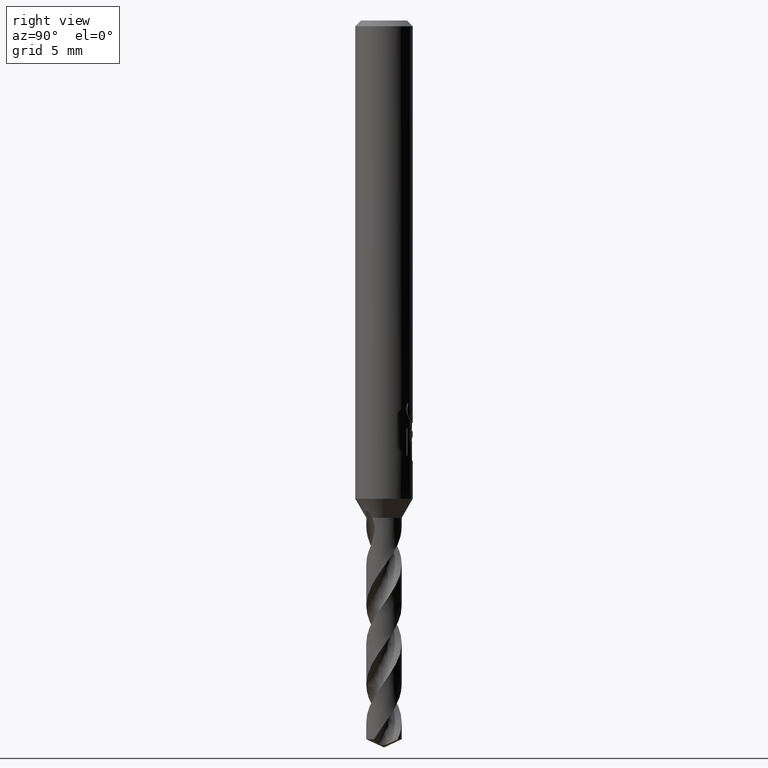
[diagram: clean part render]
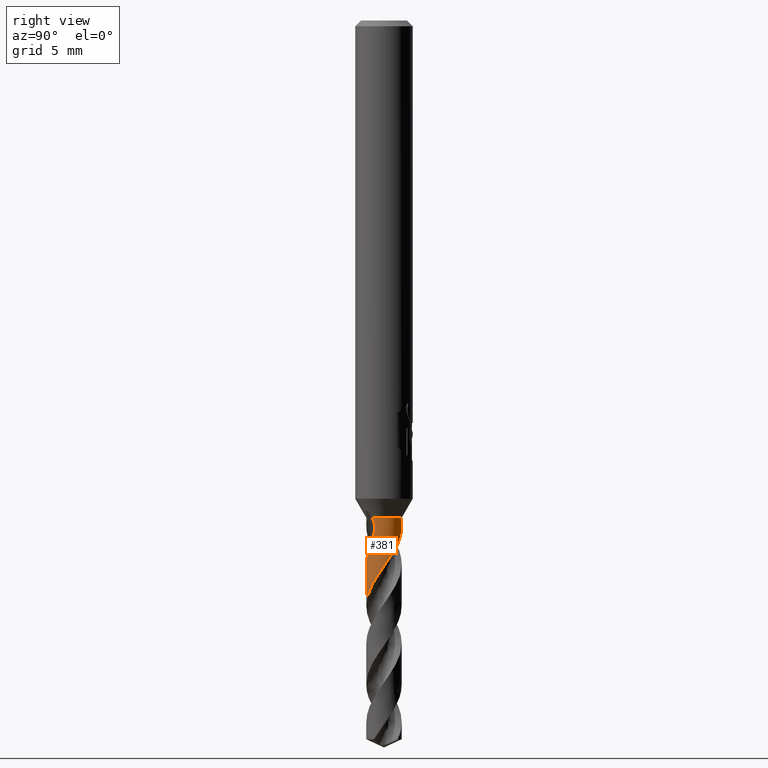
[diagram: same view with one face highlighted and labeled with its STEP entity id]
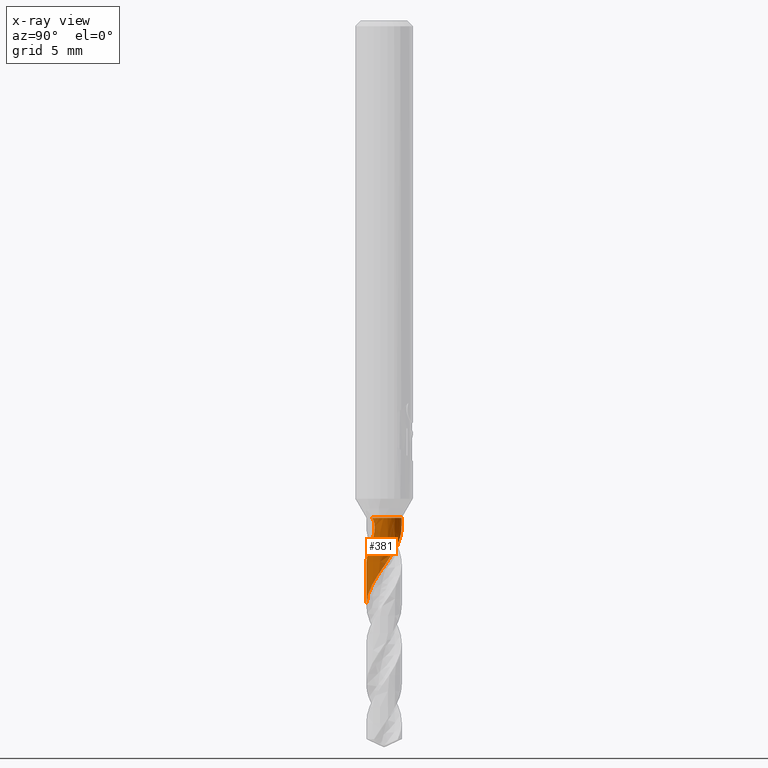
[diagram: x-ray of the same camera — body ghosted, the highlighted face saturated]
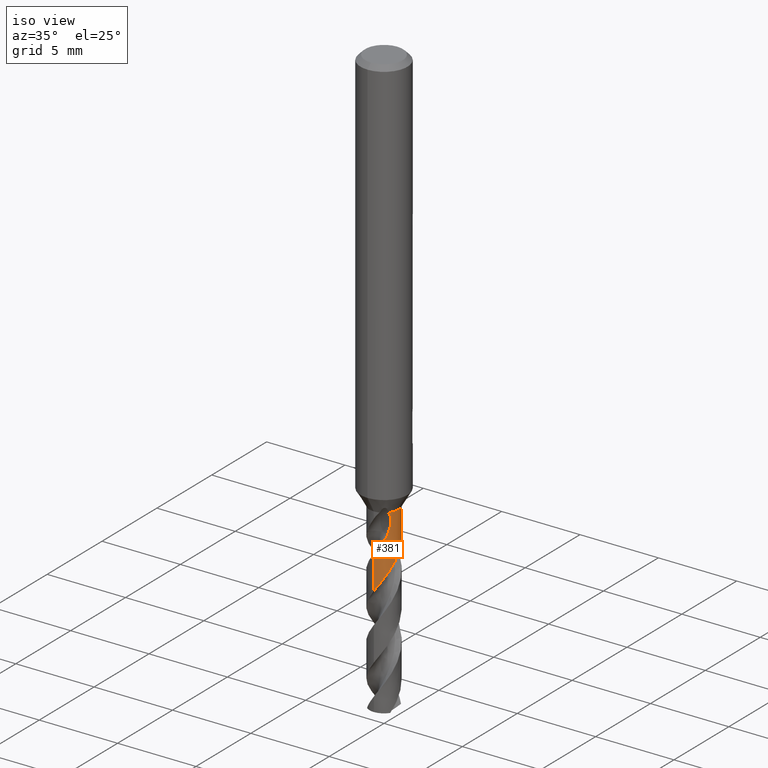
[diagram: same view with one face highlighted and labeled with its STEP entity id]
A machine part, right view. The second image highlights one B-rep face of the part: STEP entity #381.
The next image is the same camera in x-ray: the body ghosted, the highlighted face saturated — about 0% of this face is hidden behind the body in this view.
A second angle (iso view) of the same face is appended — the face is thin or edge-on in the first view.
In plain terms, the highlighted conical surface has half-angle 0 deg.
Its self-contained STEP definition (entity closure, byte-faithful):
#325=VERTEX_POINT('',#858);
#345=VERTEX_POINT('',#879);
#367=VERTEX_POINT('',#902);
#377=EDGE_CURVE('',#705,#393,#913,.T.);
#381=ADVANCED_FACE('',(#917),#918,.T.);
#393=VERTEX_POINT('',#932);
#401=EDGE_CURVE('',#773,#677,#941,.T.);
#427=VERTEX_POINT('',#970);
#479=EDGE_CURVE('',#393,#773,#1028,.T.);
#565=EDGE_CURVE('',#705,#367,#1127,.T.);
#615=EDGE_CURVE('',#345,#367,#1182,.T.);
#657=EDGE_CURVE('',#325,#427,#1228,.T.);
#665=EDGE_CURVE('',#325,#345,#1236,.T.);
#677=VERTEX_POINT('',#1249);
#699=EDGE_CURVE('',#677,#427,#1272,.T.);
#705=VERTEX_POINT('',#1278);
#773=VERTEX_POINT('',#1348);
#858=CARTESIAN_POINT('',(-9.8243710128972E-015,-0.924939684406462,-30.5909562061072));
#879=CARTESIAN_POINT('',(0.589400108508059,0.712790267500029,-27.4036));
#902=CARTESIAN_POINT('',(-2.74337250821414E-013,0.924903633529681,-26.4203508916476));
#913=CIRCLE('',#2601,0.9249);
#917=FACE_OUTER_BOUND('',#2605,.T.);
#918=CONICAL_SURFACE('',#2606,0.92495,8.64403942890488E-006);
#932=CARTESIAN_POINT('',(0.698713419006678,-0.606002943969746,-26.0));
#941=B_SPLINE_CURVE_WITH_KNOTS('',3,(#2845,#2846,#2847,#2848),.UNSPECIFIED.,.F.,.F.,(4,4),(0.0,0.531471170224398),.UNSPECIFIED.);
#970=CARTESIAN_POINT('',(3.18089912591738E-014,-0.924920880447816,-28.4155891454584));
#1028=B_SPLINE_CURVE_WITH_KNOTS('',3,(#3239,#3240,#3241,#3242,#3243,#3244,#3245,#3246),.UNSPECIFIED.,.F.,.F.,(4,2,2,4),(0.0,0.170088529511708,0.409050806964111,0.647055413065579),.UNSPECIFIED.);
#1127=LINE('',#3774,#3775);
#1182=B_SPLINE_CURVE_WITH_KNOTS('',3,(#4232,#4233,#4234,#4235,#4236,#4237,#4238,#4239,#4240,#4241,#4242,#4243,#4244,#4245),.UNSPECIFIED.,.F.,.F.,(4,2,2,2,2,2,4),(0.0,0.453211846334693,0.700665984590304,0.924785888919523,1.18514115200104,1.49787491620889,1.66448612056298),.UNSPECIFIED.);
#1228=LINE('',#4506,#4507);
#1236=B_SPLINE_CURVE_WITH_KNOTS('',3,(#4608,#4609,#4610,#4611,#4612,#4613,#4614,#4615,#4616,#4617,#4618,#4619,#4620,#4621,#4622,#4623,#4624,#4625,#4626,#4627,#4628,#4629,#4630,#4631,#4632,#4633,#4634,#4635,#4636,#4637,#4638,#4639,#4640,#4641,#4642,#4643,#4644,#4645,#4646,#4647,#4648,#4649,#4650,#4651,#4652,#4653,#4654,#4655,#4656,#4657,#4658,#4659,#4660,#4661,#4662,#4663,#4664,#4665,#4666,#4667,#4668,#4669,#4670,#4671,#4672,#4673,#4674,#4675,#4676,#4677,#4678,#4679,#4680,#4681,#4682,#4683,#4684,#4685),.UNSPECIFIED.,.F.,.F.,(4,2,2,2,2,2,2,2,2,2,2,2,2,2,2,2,2,2,2,2,2,2,2,2,2,2,2,2,2,2,2,2,2,2,2,2,2,2,4),(0.0,0.175575967498542,0.360828519478574,1.05434292255817,1.14884404777667,1.83973464778452,2.04112506220054,2.49938006816865,2.93639938622632,3.47251715777154,3.67386599290652,4.13394250316937,4.57152570850511,5.10815653292086,5.3094364090775,5.77050128530134,6.20751829246539,6.74469876623538,6.94654488725072,7.40809844879235,7.84943071925,8.3871396234596,8.58765552124518,9.04980391125373,9.48430552195443,10.0217875624723,10.2183175586294,10.6105977311638,11.5362222291659,11.6507062022349,11.9174526200369,12.0692040576392,12.1504385658655,12.1848521361453,12.2009557850324,12.218424534362,12.2468275413846,12.3092312670282,12.3409704378504),.UNSPECIFIED.);
#1249=CARTESIAN_POINT('',(0.642884402266189,-0.664952704088733,-27.4036));
#1272=B_SPLINE_CURVE_WITH_KNOTS('',3,(#4872,#4873,#4874,#4875,#4876,#4877,#4878,#4879,#4880,#4881,#4882,#4883,#4884,#4885,#4886,#4887,#4888,#4889,#4890,#4891,#4892,#4893,#4894,#4895,#4896,#4897,#4898,#4899,#4900,#4901,#4902,#4903,#4904,#4905,#4906,#4907,#4908,#4909,#4910,#4911,#4912,#4913,#4914,#4915,#4916,#4917,#4918,#4919,#4920,#4921,#4922,#4923,#4924,#4925,#4926,#4927,#4928,#4929,#4930,#4931,#4932,#4933,#4934,#4935,#4936,#4937,#4938,#4939,#4940,#4941,#4942,#4943,#4944,#4945,#4946,#4947,#4948,#4949,#4950,#4951,#4952,#4953,#4954,#4955,#4956,#4957,#4958,#4959,#4960,#4961,#4962,#4963),.UNSPECIFIED.,.F.,.F.,(4,2,2,2,2,2,2,2,2,2,2,2,2,2,2,2,2,2,2,2,2,2,2,2,2,2,2,2,2,2,2,2,2,2,2,2,2,2,2,2,2,2,2,2,2,4),(0.0,0.0472198723982483,0.0574025586129521,0.0735373590386242,0.086846957736826,0.218038330745357,0.261691917204657,0.289044875786619,0.314351081743116,0.347731999434583,0.38465281818207,0.456731164138061,0.577930900790909,0.665369080380014,0.761272562820777,0.868852536537242,1.13142299141288,1.38932056889502,1.94142634502425,2.21493816542565,2.59325546582288,3.11005719064309,3.42902150272813,4.06135873815261,4.12153041123564,4.54978736992714,5.09998388409196,5.47381847869797,6.04042352439801,6.31233732223757,6.73123919419814,7.09755836358704,7.66420864868376,7.93565156013013,8.50201480850518,8.77416913846713,9.1762110815161,9.52846108662162,10.0689661573329,10.5930693893988,10.7136336676005,11.2022319711822,11.36974455639,11.5020738266503,11.956076389131,12.5428964801662),.UNSPECIFIED.);
#1278=CARTESIAN_POINT('',(-1.1330473057431E-016,0.9249,-26.0));
#1348=CARTESIAN_POINT('',(0.752530699830753,-0.537728465253345,-26.8972295746996));
#2601=AXIS2_PLACEMENT_3D('',#5338,#5339,#5340);
#2605=EDGE_LOOP('',(#5342,#5343,#5344,#5345,#5346,#5347,#5348,#5349));
#2606=AXIS2_PLACEMENT_3D('',#5350,#5351,#5352);
#2845=CARTESIAN_POINT('',(0.752530699883373,-0.537728465179705,-26.8972295747286));
#2846=CARTESIAN_POINT('',(0.722715381687317,-0.57945639932318,-27.0668009433799));
#2847=CARTESIAN_POINT('',(0.686781075430327,-0.622510865393656,-27.2373808604398));
#2848=CARTESIAN_POINT('',(0.642884402266189,-0.664952704088733,-27.4036));
#3239=CARTESIAN_POINT('',(0.698713419006677,-0.606002943969746,-26.0));
#3240=CARTESIAN_POINT('',(0.72154832155342,-0.579675191836402,-26.0447199410045));
#3241=CARTESIAN_POINT('',(0.739656282144522,-0.555793818494479,-26.1003877226884));
#3242=CARTESIAN_POINT('',(0.77257279779973,-0.509582102210974,-26.2543227146402));
#3243=CARTESIAN_POINT('',(0.783752835929231,-0.491106068660971,-26.363350023403));
#3244=CARTESIAN_POINT('',(0.786711280595608,-0.486356728276458,-26.6066621325138));
#3245=CARTESIAN_POINT('',(0.779341119472891,-0.500206027456095,-26.7447539637576));
#3246=CARTESIAN_POINT('',(0.752530699830753,-0.537728465253344,-26.8972295746996));
#3774=CARTESIAN_POINT('',(-1.13310853606079E-016,0.92495,-31.7843327081033));
#3775=VECTOR('',#5670,1.0);
#4232=CARTESIAN_POINT('',(0.589400108508058,0.712790267500028,-27.4036));
#4233=CARTESIAN_POINT('',(0.528388895055935,0.763238469147395,-27.2749339919227));
#4234=CARTESIAN_POINT('',(0.458236804988867,0.808085614028365,-27.1549760836982));
#4235=CARTESIAN_POINT('',(0.335910459003294,0.863054299690182,-26.9545840912943));
#4236=CARTESIAN_POINT('',(0.291891993767276,0.878866537231792,-26.8840814618026));
#4237=CARTESIAN_POINT('',(0.206678851691228,0.902497681269574,-26.7476113813932));
#4238=CARTESIAN_POINT('',(0.165864482433325,0.910846395496539,-26.6822794951342));
#4239=CARTESIAN_POINT('',(0.0775209072061811,0.922894916209494,-26.5414783329317));
#4240=CARTESIAN_POINT('',(0.029253355073455,0.925723517893113,-26.4649066637302));
#4241=CARTESIAN_POINT('',(-0.0779352708556708,0.923468366527152,-26.3010989470009));
#4242=CARTESIAN_POINT('',(-0.141486315787706,0.916494675789703,-26.2078934593399));
#4243=CARTESIAN_POINT('',(-0.242111910812451,0.893370600024097,-26.0816993511979));
#4244=CARTESIAN_POINT('',(-0.279965403323301,0.882508292488477,-26.0380984712453));
#4245=CARTESIAN_POINT('',(-0.319347593766621,0.868019080640206,-26.0));
#4506=CARTESIAN_POINT('',(1.13229075787522E-016,-0.92495,-31.7843327081033));
#4507=VECTOR('',#5767,1.0);
#4608=CARTESIAN_POINT('',(0.765392373126077,-0.519422289818627,-37.5686654162066));
#4609=CARTESIAN_POINT('',(0.784380514247591,-0.491441664772919,-37.5208977650976));
#4610=CARTESIAN_POINT('',(0.801760341298683,-0.462529020240874,-37.4731786771621));
#4611=CARTESIAN_POINT('',(0.834075052254815,-0.401494554564502,-37.3747006776217));
#4612=CARTESIAN_POINT('',(0.848779109665413,-0.369376924747079,-37.32383971954));
#4613=CARTESIAN_POINT('',(0.909650441113357,-0.213519169443103,-37.0843601120505));
#4614=CARTESIAN_POINT('',(0.930761006716102,-0.0818331462465088,-36.9022410147496));
#4615=CARTESIAN_POINT('',(0.922677466299594,0.0678252243879808,-36.6879730523665));
#4616=CARTESIAN_POINT('',(0.921189631044293,0.0856921392008494,-36.6622317261582));
#4617=CARTESIAN_POINT('',(0.904467342095256,0.234112716960245,-36.448609682445));
#4618=CARTESIAN_POINT('',(0.862153669552173,0.359927809416848,-36.2671658103587));
#4619=CARTESIAN_POINT('',(0.775439273209969,0.505727394287139,-36.0251070000383));
#4620=CARTESIAN_POINT('',(0.753887361033258,0.537330934171917,-35.9701649795628));
#4621=CARTESIAN_POINT('',(0.676789642705819,0.636529680029753,-35.7910329888305));
#4622=CARTESIAN_POINT('',(0.613667366341773,0.697627858523507,-35.668607518485));
#4623=CARTESIAN_POINT('',(0.475043882724221,0.798064293605595,-35.4262369156211));
#4624=CARTESIAN_POINT('',(0.401238562023327,0.837578458419493,-35.3067460491545));
#4625=CARTESIAN_POINT('',(0.227409099607857,0.902394507541183,-35.0431808027575));
#4626=CARTESIAN_POINT('',(0.126518373206019,0.921927599049064,-34.9009925087592));
#4627=CARTESIAN_POINT('',(-0.0135443842239926,0.925666846836106,-34.7010999657655));
#4628=CARTESIAN_POINT('',(-0.0517352960644762,0.924321039060561,-34.6462148538446));
#4629=CARTESIAN_POINT('',(-0.176987178772398,0.91209304406096,-34.4667734413281));
#4630=CARTESIAN_POINT('',(-0.262599416249737,0.891256566140638,-34.3439838849488));
#4631=CARTESIAN_POINT('',(-0.421754644597107,0.827453400397262,-34.1012057547331));
#4632=CARTESIAN_POINT('',(-0.494563017818746,0.786079291227331,-33.9816806456056));
#4633=CARTESIAN_POINT('',(-0.642109173230414,0.673576255918907,-33.7180831370391));
#4634=CARTESIAN_POINT('',(-0.712431607998869,0.598645622455958,-33.5759001478793));
#4635=CARTESIAN_POINT('',(-0.790253966929606,0.482199260866015,-33.3760813727008));
#4636=CARTESIAN_POINT('',(-0.809457485789412,0.449220706216457,-33.3212680967693));
#4637=CARTESIAN_POINT('',(-0.865943165917025,0.336713958674217,-33.1417541615013));
#4638=CARTESIAN_POINT('',(-0.894002664012377,0.253085426200221,-33.0188265631593));
#4639=CARTESIAN_POINT('',(-0.924857011022342,0.0845115994394349,-32.7761784326368));
#4640=CARTESIAN_POINT('',(-0.92868649245956,0.0010516662091582,-32.6569309109765));
#4641=CARTESIAN_POINT('',(-0.91229888419972,-0.183571282582862,-32.3936029187602));
#4642=CARTESIAN_POINT('',(-0.886458177288607,-0.283031328303463,-32.251416843275));
#4643=CARTESIAN_POINT('',(-0.829479428524753,-0.411054092608912,-32.0515027355334));
#4644=CARTESIAN_POINT('',(-0.811802216592632,-0.44495118138851,-31.9965908967525));
#4645=CARTESIAN_POINT('',(-0.746745122658854,-0.55279584180876,-31.8169867676707));
#4646=CARTESIAN_POINT('',(-0.690983517157953,-0.621138288764363,-31.6940627697022));
#4647=CARTESIAN_POINT('',(-0.564327978826589,-0.737656893513796,-31.4503852564251));
#4648=CARTESIAN_POINT('',(-0.495114876271323,-0.785762831385403,-31.3300880839133));
#4649=CARTESIAN_POINT('',(-0.329356363733435,-0.870339594705546,-31.0657427521712));
#4650=CARTESIAN_POINT('',(-0.231380861533836,-0.901306147578169,-30.9235759782654));
#4651=CARTESIAN_POINT('',(-0.092965290213835,-0.921040290421541,-30.7240762827117));
#4652=CARTESIAN_POINT('',(-0.0551462363420279,-0.924078245976952,-30.6695847699962));
#4653=CARTESIAN_POINT('',(0.070546454734379,-0.926402604481755,-30.4903238564789));
#4654=CARTESIAN_POINT('',(0.158125360750212,-0.915561212184012,-30.36732869851));
#4655=CARTESIAN_POINT('',(0.322883147617352,-0.870689100030256,-30.1255065053255));
#4656=CARTESIAN_POINT('',(0.39924039905627,-0.838404283386813,-30.0071551437473));
#4657=CARTESIAN_POINT('',(0.558204430619525,-0.744532834237145,-29.7449189355787));
#4658=CARTESIAN_POINT('',(0.636770523360065,-0.678502398866895,-29.6029748500079));
#4659=CARTESIAN_POINT('',(0.727053779955913,-0.572948792529293,-29.4047685818148));
#4660=CARTESIAN_POINT('',(0.749440542849017,-0.543336581233159,-29.3513946775145));
#4661=CARTESIAN_POINT('',(0.811143642118129,-0.450603825405646,-29.1923342754664));
#4662=CARTESIAN_POINT('',(0.844796495363684,-0.383914183574037,-29.0875521904075));
#4663=CARTESIAN_POINT('',(0.929904437573281,-0.147782049829723,-28.7329990234062));
#4664=CARTESIAN_POINT('',(0.940798775969694,0.0322440173726759,-28.4829320863451));
#4665=CARTESIAN_POINT('',(0.897594460879294,0.224206390390812,-28.2048875980591));
#4666=CARTESIAN_POINT('',(0.892079880566107,0.245244618783504,-28.1743444321979));
#4667=CARTESIAN_POINT('',(0.87115837466461,0.314871322460574,-28.0728464959415));
#4668=CARTESIAN_POINT('',(0.852820978564851,0.361508246357305,-28.0048386394204));
#4669=CARTESIAN_POINT('',(0.818199552977871,0.432244456055311,-27.8924042406219));
#4670=CARTESIAN_POINT('',(0.804730022516641,0.456755589124895,-27.8515353882718));
#4671=CARTESIAN_POINT('',(0.782955603452119,0.492608387429901,-27.7876544695237));
#4672=CARTESIAN_POINT('',(0.775196456395363,0.50471641369002,-27.7652769211405));
#4673=CARTESIAN_POINT('',(0.763955298415356,0.521417214388152,-27.7331188333065));
#4674=CARTESIAN_POINT('',(0.757830120601282,0.530460106128628,-27.7154775181767));
#4675=CARTESIAN_POINT('',(0.744854341569095,0.548369048938007,-27.6818536544483));
#4676=CARTESIAN_POINT('',(0.740596587997576,0.554108386723738,-27.671212355858));
#4677=CARTESIAN_POINT('',(0.731436972390864,0.56615220808101,-27.6491603945154));
#4678=CARTESIAN_POINT('',(0.726519786947513,0.572451921477228,-27.637781924982));
#4679=CARTESIAN_POINT('',(0.713169262673191,0.589092371138201,-27.6081173738842));
#4680=CARTESIAN_POINT('',(0.704489464191559,0.59946020642504,-27.5900274459434));
#4681=CARTESIAN_POINT('',(0.675238722313121,0.632808396456147,-27.532911005788));
#4682=CARTESIAN_POINT('',(0.653116479417904,0.655760899366488,-27.4952229236873));
#4683=CARTESIAN_POINT('',(0.616086236916864,0.690065503264373,-27.4398981271289));
#4684=CARTESIAN_POINT('',(0.603039171646072,0.701512446089887,-27.4216055230125));
#4685=CARTESIAN_POINT('',(0.589400108508059,0.712790267500028,-27.4036));
#4872=CARTESIAN_POINT('',(0.642884402266188,-0.664952704088734,-27.4036));
#4873=CARTESIAN_POINT('',(0.636670730167389,-0.670960316389235,-27.4167546620834));
#4874=CARTESIAN_POINT('',(0.630350256363287,-0.676903014539543,-27.4298787435103));
#4875=CARTESIAN_POINT('',(0.622513291085962,-0.684064234619346,-27.4458071380113));
#4876=CARTESIAN_POINT('',(0.621117586351333,-0.685331803957977,-27.4486309819827));
#4877=CARTESIAN_POINT('',(0.617495499677036,-0.688601152118165,-27.4559255978662));
#4878=CARTESIAN_POINT('',(0.615261021023809,-0.690598479960258,-27.4603930347927));
#4879=CARTESIAN_POINT('',(0.611156279511777,-0.69423168579655,-27.4685392536153));
#4880=CARTESIAN_POINT('',(0.609291234582837,-0.695869186862352,-27.4722182010309));
#4881=CARTESIAN_POINT('',(0.588932405707068,-0.713599020060686,-27.512132544792));
#4882=CARTESIAN_POINT('',(0.569763122647016,-0.729021417400453,-27.5475022624895));
#4883=CARTESIAN_POINT('',(0.542694634092185,-0.749011768626875,-27.5948947724372));
#4884=CARTESIAN_POINT('',(0.535847765299091,-0.753926042570833,-27.6066853964837));
#4885=CARTESIAN_POINT('',(0.52455627898528,-0.761797105883497,-27.6258554159362));
#4886=CARTESIAN_POINT('',(0.520174454790984,-0.764796016316716,-27.6332293865435));
#4887=CARTESIAN_POINT('',(0.511675445660537,-0.770505548744691,-27.6474224329941));
#4888=CARTESIAN_POINT('',(0.507566124642924,-0.773218842833083,-27.6542365232546));
#4889=CARTESIAN_POINT('',(0.497978296693273,-0.77943992170518,-27.6700398633243));
#4890=CARTESIAN_POINT('',(0.49248699615854,-0.782921255251314,-27.6790199642914));
#4891=CARTESIAN_POINT('',(0.480845125686128,-0.790130902348939,-27.6979467740213));
#4892=CARTESIAN_POINT('',(0.474694750655511,-0.793841084324896,-27.7078814418642));
#4893=CARTESIAN_POINT('',(0.456435780093565,-0.80456837721098,-27.7372622571889));
#4894=CARTESIAN_POINT('',(0.44439951876956,-0.811275514521527,-27.7565300327697));
#4895=CARTESIAN_POINT('',(0.411652810317654,-0.828583345822062,-27.8087957693636));
#4896=CARTESIAN_POINT('',(0.390805705849596,-0.838611878476652,-27.841820020077));
#4897=CARTESIAN_POINT('',(0.354495598099065,-0.854446511531871,-27.8985650815411));
#4898=CARTESIAN_POINT('',(0.339105796988886,-0.860670355718271,-27.9223870446021));
#4899=CARTESIAN_POINT('',(0.306504362594994,-0.872844770880619,-27.9722755420058));
#4900=CARTESIAN_POINT('',(0.28923303490341,-0.878720844410013,-27.9983781656676));
#4901=CARTESIAN_POINT('',(0.252162383859663,-0.890116507136401,-28.0536492051337));
#4902=CARTESIAN_POINT('',(0.232429246603116,-0.895472436434946,-28.0825878672011));
#4903=CARTESIAN_POINT('',(0.163725802129522,-0.911688680425173,-28.1825469533601));
#4904=CARTESIAN_POINT('',(0.114172098686781,-0.919206851963723,-28.2531396566232));
#4905=CARTESIAN_POINT('',(0.0152924774792318,-0.926097557551066,-28.3937981089318));
#4906=CARTESIAN_POINT('',(-0.0338357882271308,-0.92560042100938,-28.4636831497853));
#4907=CARTESIAN_POINT('',(-0.187138304649561,-0.911849044677926,-28.682727189828));
#4908=CARTESIAN_POINT('',(-0.289323049568507,-0.884757402143378,-28.8306400639428));
#4909=CARTESIAN_POINT('',(-0.432064760973752,-0.819458942547438,-29.053800762969));
#4910=CARTESIAN_POINT('',(-0.47748031300969,-0.793860955332012,-29.1275455134643));
#4911=CARTESIAN_POINT('',(-0.580082359614853,-0.724007681820136,-29.3035869686202));
#4912=CARTESIAN_POINT('',(-0.634606867034171,-0.676706862654977,-29.4052434796138));
#4913=CARTESIAN_POINT('',(-0.749245690148246,-0.551148820948002,-29.6473687813657));
#4914=CARTESIAN_POINT('',(-0.803576548775586,-0.468464101524314,-29.786356219687));
#4915=CARTESIAN_POINT('',(-0.868757700906004,-0.323197502485947,-30.0121131607113));
#4916=CARTESIAN_POINT('',(-0.888078314697722,-0.265513839459661,-30.0979862308302));
#4917=CARTESIAN_POINT('',(-0.928431434440351,-0.0892679858678862,-30.3553159326868));
#4918=CARTESIAN_POINT('',(-0.932190286468774,0.0321193606304813,-30.524461618685));
#4919=CARTESIAN_POINT('',(-0.9106766381107,0.162218027006106,-30.7115660109244));
#4920=CARTESIAN_POINT('',(-0.908598654722256,0.173479697674763,-30.7278176178016));
#4921=CARTESIAN_POINT('',(-0.890039556216944,0.264554065361956,-30.8598817359725));
#4922=CARTESIAN_POINT('',(-0.863270472960172,0.341955222903574,-30.9756975814263));
#4923=CARTESIAN_POINT('',(-0.779711809688741,0.508477071559505,-31.2403370473917));
#4924=CARTESIAN_POINT('',(-0.717194355809263,0.593382827497883,-31.3874862968421));
#4925=CARTESIAN_POINT('',(-0.590687878203269,0.715311652703752,-31.6376120614551));
#4926=CARTESIAN_POINT('',(-0.53393135308635,0.758633782673307,-31.7385007567061));
#4927=CARTESIAN_POINT('',(-0.379871984014234,0.85023178907695,-31.9927900851639));
#4928=CARTESIAN_POINT('',(-0.278175871075139,0.888692446123607,-32.1449226278485));
#4929=CARTESIAN_POINT('',(-0.121455006602374,0.918404163837313,-32.371877248822));
#4930=CARTESIAN_POINT('',(-0.0698662915752576,0.92376837505265,-32.4452948557599));
#4931=CARTESIAN_POINT('',(0.0617835587058118,0.926339158999107,-32.6320823697621));
#4932=CARTESIAN_POINT('',(0.141386233983722,0.917553694261432,-32.7447008550625));
#4933=CARTESIAN_POINT('',(0.286484297785731,0.882231029388376,-32.9572925171277));
#4934=CARTESIAN_POINT('',(0.352174042840417,0.858138516387603,-33.0561954880277));
#4935=CARTESIAN_POINT('',(0.511144240782312,0.77843078653719,-33.3085233486645));
#4936=CARTESIAN_POINT('',(0.598395003409461,0.713516411015554,-33.4606275911541));
#4937=CARTESIAN_POINT('',(0.707888013969335,0.597599043853701,-33.6875181995588));
#4938=CARTESIAN_POINT('',(0.74017867733634,0.557115237167617,-33.7608324771687));
#4939=CARTESIAN_POINT('',(0.828950925577923,0.424341312150787,-33.9874158186039));
#4940=CARTESIAN_POINT('',(0.872734607195676,0.324837611954639,-34.1395649671797));
#4941=CARTESIAN_POINT('',(0.910715333451356,0.169862832348588,-34.3665623040157));
#4942=CARTESIAN_POINT('',(0.918808400172845,0.118569091599295,-34.440053506118));
#4943=CARTESIAN_POINT('',(0.928095289360575,-0.00963901217360585,-34.6223827390907));
#4944=CARTESIAN_POINT('',(0.924102458800276,-0.0863921075357697,-34.7305290936682));
#4945=CARTESIAN_POINT('',(0.899020654343474,-0.227672892256932,-34.9347935369721));
#4946=CARTESIAN_POINT('',(0.880160014167414,-0.292253107355013,-35.0299609082657));
#4947=CARTESIAN_POINT('',(0.814977249253361,-0.449463077540138,-35.2714892937967));
#4948=CARTESIAN_POINT('',(0.759919159739436,-0.537298500107906,-35.4165076186263));
#4949=CARTESIAN_POINT('',(0.625419015014679,-0.688759997009473,-35.7048247953229));
#4950=CARTESIAN_POINT('',(0.547518090427442,-0.752200891662551,-35.8454279011459));
#4951=CARTESIAN_POINT('',(0.440951988558066,-0.81344326829193,-36.0197771110845));
#4952=CARTESIAN_POINT('',(0.420622768177745,-0.824138271278082,-36.0523721084301));
#4953=CARTESIAN_POINT('',(0.316070033441488,-0.874272607434882,-36.2172815090275));
#4954=CARTESIAN_POINT('',(0.226522908713135,-0.901651242981324,-36.3492055720578));
#4955=CARTESIAN_POINT('',(0.102726529137062,-0.919823952689885,-36.5267362400613));
#4956=CARTESIAN_POINT('',(0.07089684596898,-0.922823788241661,-36.5720019338703));
#4957=CARTESIAN_POINT('',(0.0137514524681485,-0.92523426019837,-36.6531208874993));
#4958=CARTESIAN_POINT('',(-0.0114803882577565,-0.925264707489735,-36.688884743738));
#4959=CARTESIAN_POINT('',(-0.123103529075962,-0.920837144238837,-36.8476634831414));
#4960=CARTESIAN_POINT('',(-0.208713039172987,-0.905294776949889,-36.9704412564362));
#4961=CARTESIAN_POINT('',(-0.397231916660742,-0.842830993752988,-37.2522298110565));
#4962=CARTESIAN_POINT('',(-0.496101047000617,-0.788651812783807,-37.409548982064));
#4963=CARTESIAN_POINT('',(-0.582802735768863,-0.718307713435076,-37.5686654162066));
#5338=CARTESIAN_POINT('',(0.0,0.0,-26.0));
#5339=DIRECTION('',(0.0,0.0,-1.0));
#5340=DIRECTION('',(0.0,1.0,0.0));
#5342=ORIENTED_EDGE('',*,*,#565,.F.);
#5343=ORIENTED_EDGE('',*,*,#377,.T.);
#5344=ORIENTED_EDGE('',*,*,#479,.T.);
#5345=ORIENTED_EDGE('',*,*,#401,.T.);
#5346=ORIENTED_EDGE('',*,*,#699,.T.);
#5347=ORIENTED_EDGE('',*,*,#657,.F.);
#5348=ORIENTED_EDGE('',*,*,#665,.T.);
#5349=ORIENTED_EDGE('',*,*,#615,.T.);
#5350=CARTESIAN_POINT('',(0.0,0.0,-31.7843327081033));
#5351=DIRECTION('',(0.0,-0.0,-1.0));
#5352=DIRECTION('',(0.0,1.0,0.0));
#5670=DIRECTION('',(-1.05855456071962E-021,8.64403942879723E-006,-0.99999999996264));
#5767=DIRECTION('',(-1.05855456071962E-021,8.64403942879723E-006,0.99999999996264));